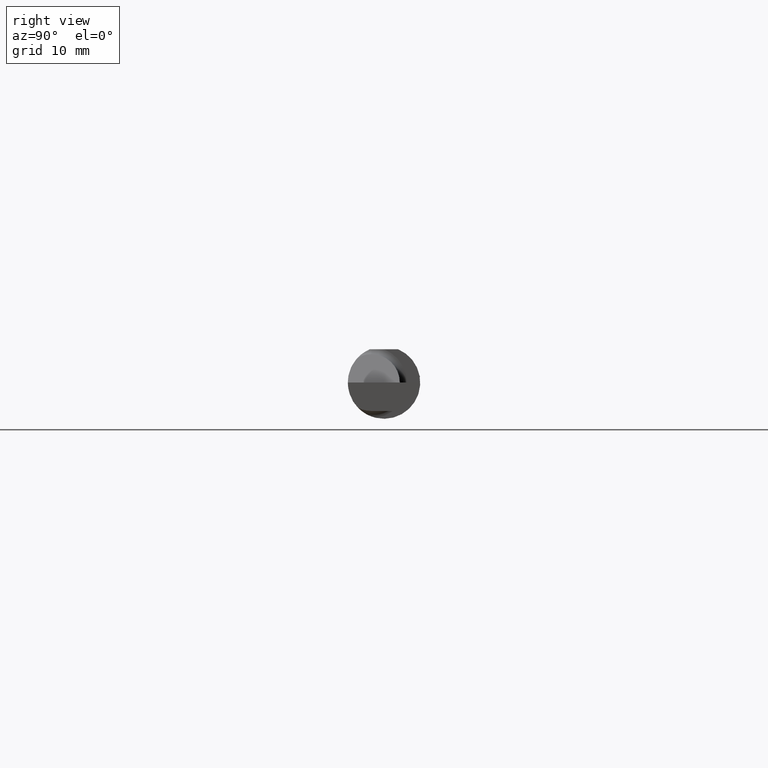
[diagram: clean part render]
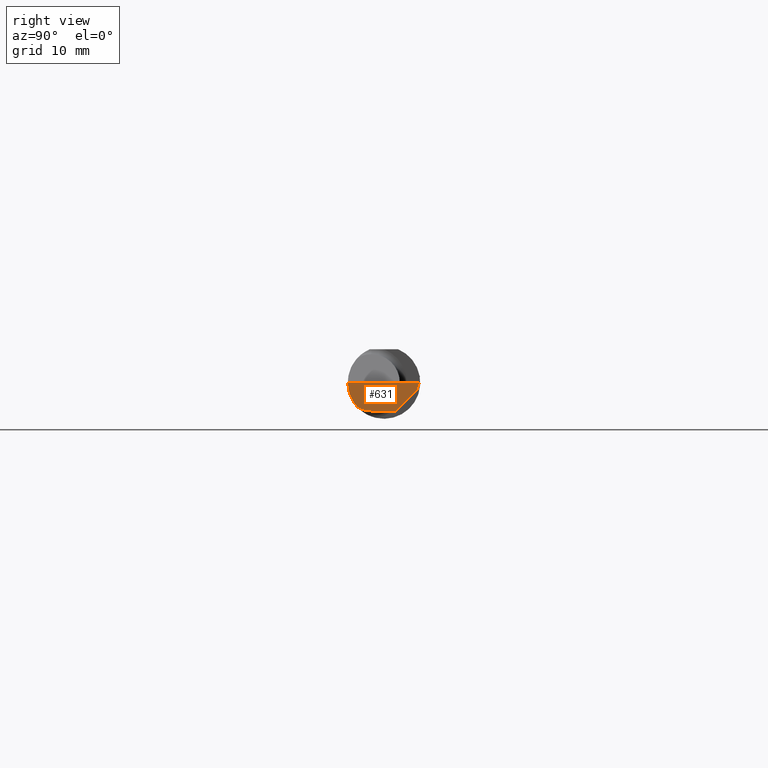
[diagram: same view with one face highlighted and labeled with its STEP entity id]
A machine part, right view. The second image highlights one B-rep face of the part: STEP entity #631.
In plain terms, the highlighted planar face has unit normal (-0.9995, 0.0174, 0.0262).
Its self-contained STEP definition (entity closure, byte-faithful):
#2 = CARTESIAN_POINT ( 'NONE',  ( 2.496652745773396020, 0.07741163850316090667, -0.09800000000000001765 ) ) ;
#5 = CARTESIAN_POINT ( 'NONE',  ( 2.494536841675280670, -0.04385000000000003478, -0.09799999999999998990 ) ) ;
#49 = CARTESIAN_POINT ( 'NONE',  ( 2.499132853025171297, 0.1117231085775382687, -0.02616302870350971019 ) ) ;
#55 = ORIENTED_EDGE ( 'NONE', *, *, #531, .F. ) ;
#80 = DIRECTION ( 'NONE',  ( 0.02618093032612054533, 0.000000000000000000, 0.9996572206948034500 ) ) ;
#83 = VECTOR ( 'NONE', #728, 39.37007874015748854 ) ;
#85 = CARTESIAN_POINT ( 'NONE',  ( 2.499227245409318954, 0.1138861372810479888, -0.02400000000000000050 ) ) ;
#86 = ORIENTED_EDGE ( 'NONE', *, *, #593, .F. ) ;
#87 = EDGE_LOOP ( 'NONE', ( #702, #55, #172, #758, #187, #86, #351 ) ) ;
#92 = VERTEX_POINT ( 'NONE', #335 ) ;
#96 = CARTESIAN_POINT ( 'NONE',  ( 2.494033449660867152, -0.09015216647662482874, -0.08637192471845768493 ) ) ;
#100 = CARTESIAN_POINT ( 'NONE',  ( 2.495997960279815686, 0.03988613728104775658, -0.09799999999999996214 ) ) ;
#133 = CARTESIAN_POINT ( 'NONE',  ( 2.494380489674781209, -0.1999019447116721915, 6.881915332554903690E-19 ) ) ;
#163 = CARTESIAN_POINT ( 'NONE',  ( 2.494256244271084721, -0.1126860773865890480, -0.06285177167860772629 ) ) ;
#170 = CARTESIAN_POINT ( 'NONE',  ( 2.494082244196984099, -0.07583965973232818791, -0.09404455760388209795 ) ) ;
#172 = ORIENTED_EDGE ( 'NONE', *, *, #265, .F. ) ;
#175 = CARTESIAN_POINT ( 'NONE',  ( 2.494033449660867152, -0.09015216647662482874, -0.08637192471845768493 ) ) ;
#184 = VECTOR ( 'NONE', #371, 39.37007874015748854 ) ;
#187 = ORIENTED_EDGE ( 'NONE', *, *, #388, .F. ) ;
#191 = DIRECTION ( 'NONE',  ( -0.03042981077198583101, -0.3254173858243484818, -0.9450807116958995779 ) ) ;
#207 = CARTESIAN_POINT ( 'NONE',  ( 2.493072779947982820, -0.1248043149033065402, -0.09996577117162359916 ) ) ;
#227 = EDGE_CURVE ( 'NONE', #521, #516, #619, .T. ) ;
#234 =( BOUNDED_CURVE ( )  B_SPLINE_CURVE ( 3, ( #96, #163, #329, #769 ),
 .UNSPECIFIED., .F., .F. ) 
 B_SPLINE_CURVE_WITH_KNOTS ( ( 4, 4 ),
 ( 0.2190942387645155864, 0.9826237902196512941 ),
 .UNSPECIFIED. ) 
 CURVE ( )  GEOMETRIC_REPRESENTATION_ITEM ( )  RATIONAL_B_SPLINE_CURVE ( ( 1.000000000000000000, 0.9520057322288819623, 0.9520057322288819623, 1.000000000000000000 ) ) 
 REPRESENTATION_ITEM ( '' )  );
#250 = LINE ( 'NONE', #730, #458 ) ;
#257 = VECTOR ( 'NONE', #407, 39.37007874015748854 ) ;
#265 = EDGE_CURVE ( 'NONE', #624, #685, #778, .T. ) ;
#301 = CARTESIAN_POINT ( 'NONE',  ( 2.494536841675280670, -0.04385000000000003478, -0.09799999999999998990 ) ) ;
#314 = PLANE ( 'NONE',  #530 ) ;
#329 = CARTESIAN_POINT ( 'NONE',  ( 2.494835769263151537, -0.1248351010429638308, -0.03262966116142157480 ) ) ;
#335 = CARTESIAN_POINT ( 'NONE',  ( 2.500000000000000444, 0.1221499999999999808, 1.947508823608312588E-17 ) ) ;
#351 = ORIENTED_EDGE ( 'NONE', *, *, #732, .F. ) ;
#371 = DIRECTION ( 'NONE',  ( 0.02617296143184116158, -0.0004568507411563386858, 0.9996573249755575929 ) ) ;
#374 = CARTESIAN_POINT ( 'NONE',  ( 2.497382703856816377, 0.1221956850741156286, -0.09996573249755572044 ) ) ;
#388 = EDGE_CURVE ( 'NONE', #718, #92, #426, .T. ) ;
#395 = VERTEX_POINT ( 'NONE', #615 ) ;
#407 = DIRECTION ( 'NONE',  ( -0.03084274406794521375, -0.7067703747110382073, -0.7067703747110356538 ) ) ;
#410 = LINE ( 'NONE', #2, #83 ) ;
#426 = LINE ( 'NONE', #133, #711 ) ;
#445 = LINE ( 'NONE', #207, #184 ) ;
#449 = EDGE_CURVE ( 'NONE', #92, #624, #250, .T. ) ;
#458 = VECTOR ( 'NONE', #191, 39.37007874015748854 ) ;
#516 = VERTEX_POINT ( 'NONE', #301 ) ;
#521 = VERTEX_POINT ( 'NONE', #175 ) ;
#524 = CARTESIAN_POINT ( 'NONE',  ( 2.495690077103728921, -0.1248499999950965084, 1.733801157256528502E-17 ) ) ;
#530 = AXIS2_PLACEMENT_3D ( 'NONE', #374, #739, #80 ) ;
#531 = EDGE_CURVE ( 'NONE', #685, #516, #410, .T. ) ;
#552 = FACE_OUTER_BOUND ( 'NONE', #87, .T. ) ;
#593 = EDGE_CURVE ( 'NONE', #395, #718, #445, .T. ) ;
#615 = CARTESIAN_POINT ( 'NONE',  ( 2.495688583004118666, -0.1248499869621840785, -5.705736120969982501E-05 ) ) ;
#619 =( BOUNDED_CURVE ( )  B_SPLINE_CURVE ( 3, ( #665, #170, #772, #5 ),
 .UNSPECIFIED., .F., .T. ) 
 B_SPLINE_CURVE_WITH_KNOTS ( ( 4, 4 ),
 ( 0.09562308769844128642, 0.5877155292609013149 ),
 .UNSPECIFIED. ) 
 CURVE ( )  GEOMETRIC_REPRESENTATION_ITEM ( )  RATIONAL_B_SPLINE_CURVE ( ( 1.000000000000000000, 0.9799220177372778284, 0.9799220177372778284, 1.000000000000000000 ) ) 
 REPRESENTATION_ITEM ( '' )  );
#624 = VERTEX_POINT ( 'NONE', #85 ) ;
#631 = ADVANCED_FACE ( 'NONE', ( #552 ), #314, .F. ) ;
#665 = CARTESIAN_POINT ( 'NONE',  ( 2.494033449660867152, -0.09015216647662482874, -0.08637192471845768493 ) ) ;
#669 = DIRECTION ( 'NONE',  ( 0.01744642479411464761, 0.9998477995484629233, -2.135106780035675284E-18 ) ) ;
#685 = VERTEX_POINT ( 'NONE', #100 ) ;
#702 = ORIENTED_EDGE ( 'NONE', *, *, #227, .T. ) ;
#711 = VECTOR ( 'NONE', #669, 39.37007874015748854 ) ;
#718 = VERTEX_POINT ( 'NONE', #524 ) ;
#728 = DIRECTION ( 'NONE',  ( -0.01744642479411464067, -0.9998477995484629233, 2.816882764651547739E-16 ) ) ;
#730 = CARTESIAN_POINT ( 'NONE',  ( 2.499907402661638578, 0.1211597610527450630, -0.002875862722116008779 ) ) ;
#732 = EDGE_CURVE ( 'NONE', #521, #395, #234, .T. ) ;
#739 = DIRECTION ( 'NONE',  ( -0.9995051766793262571, 0.01744044634007211117, 0.02617694830739122208 ) ) ;
#758 = ORIENTED_EDGE ( 'NONE', *, *, #449, .F. ) ;
#769 = CARTESIAN_POINT ( 'NONE',  ( 2.495688583004118666, -0.1248499869621840785, -5.705736120969982501E-05 ) ) ;
#772 = CARTESIAN_POINT ( 'NONE',  ( 2.494253479596434175, -0.06008937020638530080, -0.09800000000000001765 ) ) ;
#778 = LINE ( 'NONE', #49, #257 ) ;